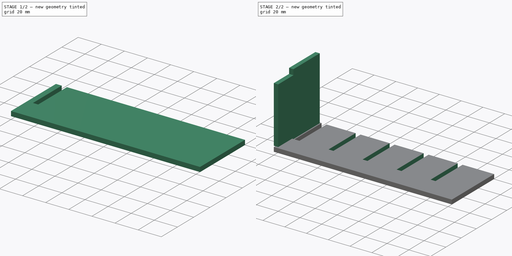
[diagram: build sequence overview — one tinted view per stage of 2, left to right]
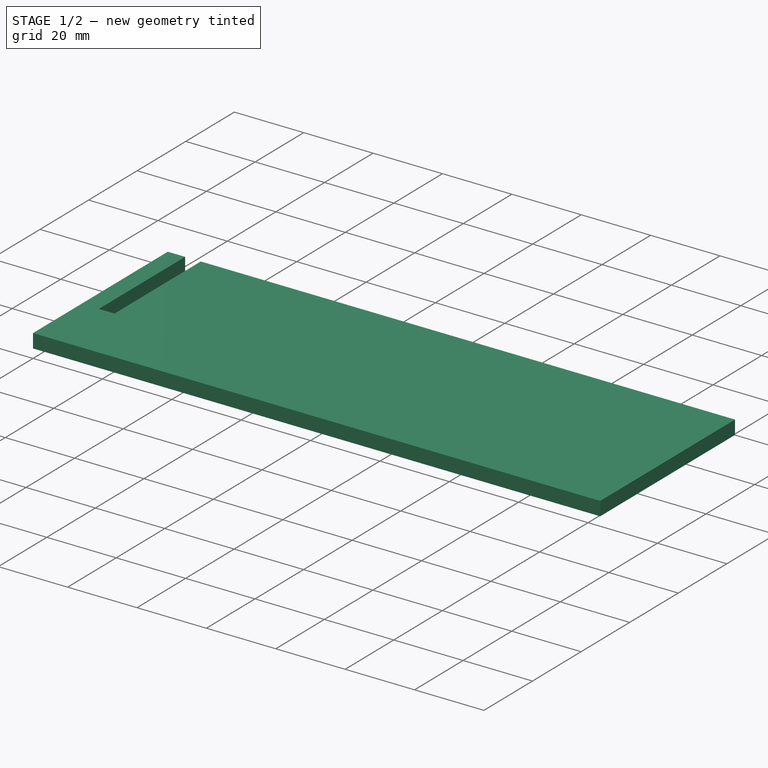
[diagram: stage 1 of 2 — iso view after this stage's code; geometry added in this stage tinted green]
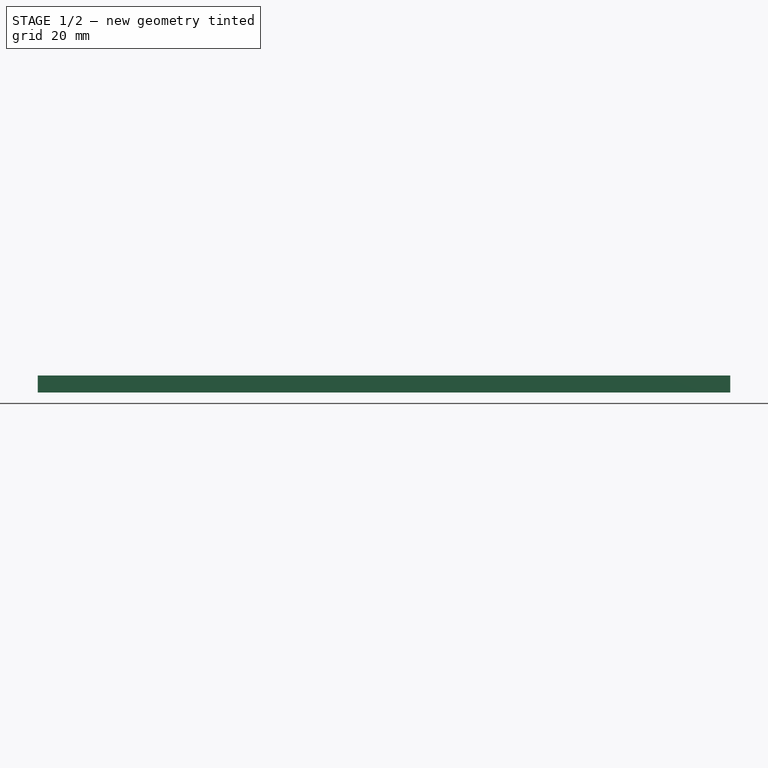
[diagram: stage 1 of 2 — front view after this stage's code; geometry added in this stage tinted green]
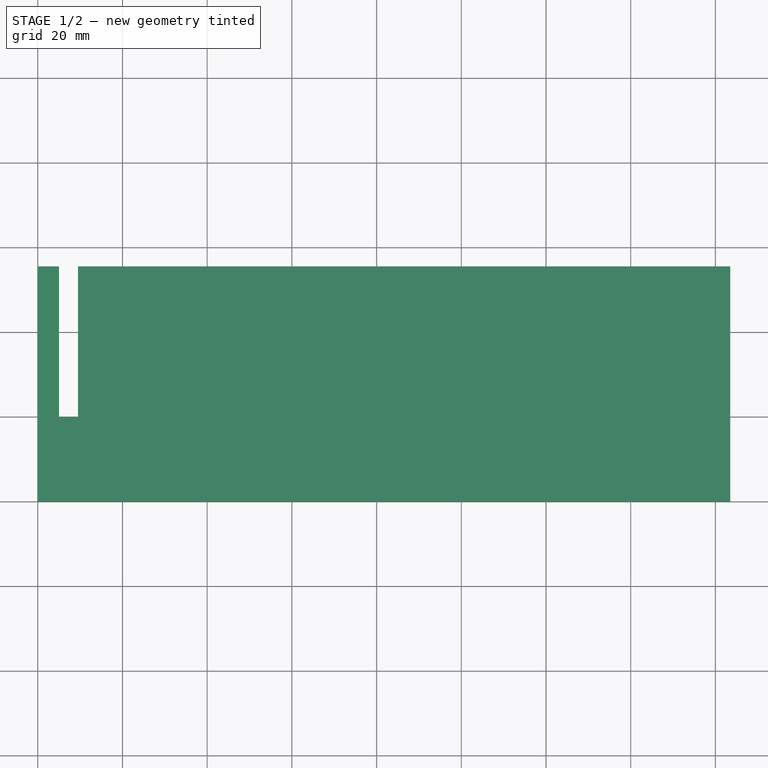
[diagram: stage 1 of 2 — top view after this stage's code; geometry added in this stage tinted green]
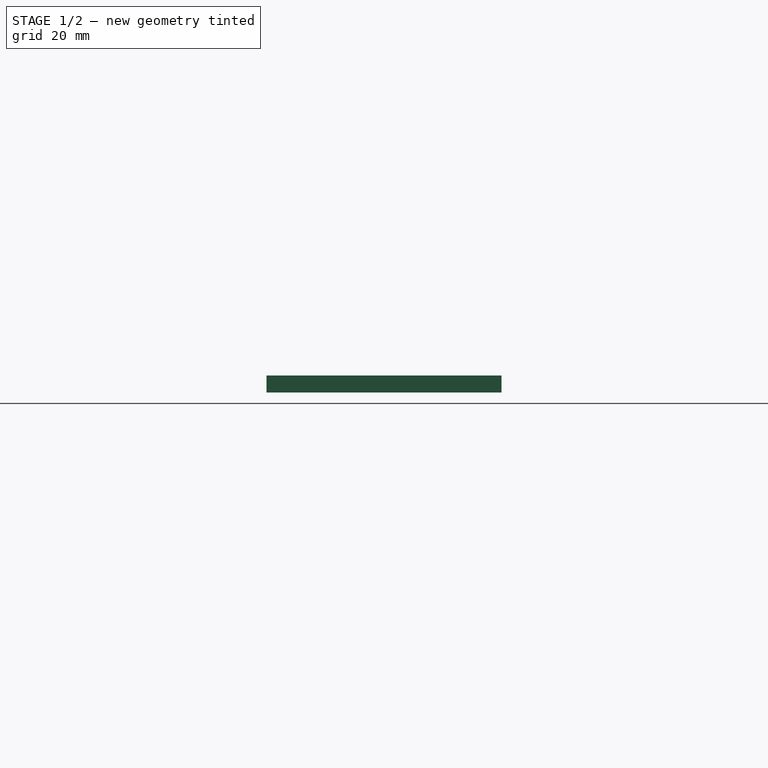
[diagram: stage 1 of 2 — right view after this stage's code; geometry added in this stage tinted green]
FCSTD DOCUMENT  (FreeCAD 0.19R)
Label: Box_Divider
License: All rights reserved
LicenseURL: http://en.wikipedia.org/wiki/All_rights_reserved
objects: Sketcher::SketchObject×4, PartDesign::Body×4, PartDesign::Pad×2, PartDesign::Pocket×1, PartDesign::LinearPattern×1, PartDesign::ShapeBinder×1
note: 16 computed .brp shape members not serialized (recipe doc carries the construction recipe); baked Part::Feature solids carry a one-line shape summary decoded from their .brp

FEATURE [Sketcher::SketchObject] Sketch
  FullyConstrained = true
  MapMode = 5
  Support = -> [XY_Plane]
  sketch-geometry (4):
    g0: LineSegment StartX=0 StartY=0 StartZ=0 EndX=163.5 EndY=0 EndZ=0
    g1: LineSegment StartX=163.5 StartY=0 StartZ=0 EndX=163.5 EndY=55.5 EndZ=0
    g2: LineSegment StartX=163.5 StartY=55.5 StartZ=0 EndX=0 EndY=55.5 EndZ=0
    g3: LineSegment StartX=0 StartY=55.5 StartZ=0 EndX=0 EndY=0 EndZ=0
  constraints (11):
    c: Coincident(g0,g1)
    c: Coincident(g1,g2)
    c: Coincident(g2,g3)
    c: Coincident(g3,g0)
    c: Horizontal(g0)
    c: Horizontal(g2)
    c: Vertical(g1)
    c: Vertical(g3)
    c: Coincident(g0,g-1)
    c: DistanceX(g2,g2) = 163.5
    c: DistanceY(g3,g3) = 55.5
FEATURE [PartDesign::Pad] Pad
  Direction = (0,0,1)
  Length = 4
  Length2 = 100
  Profile = -> Sketch
  Refine = true
  Type = 0
FEATURE [Sketcher::SketchObject] Sketch001
  ExternalGeometry = -> [Pad]
  FullyConstrained = true
  MapMode = 5
  Placement = pos=(0,0,4) rot=(0,0,1;0rad)
  Support = -> [Pad]
  sketch-geometry (4):
    g0: LineSegment StartX=5 StartY=55.5 StartZ=0 EndX=9.5 EndY=55.5 EndZ=0
    g1: LineSegment StartX=9.5 StartY=55.5 StartZ=0 EndX=9.5 EndY=20 EndZ=0
    g2: LineSegment StartX=9.5 StartY=20 StartZ=0 EndX=5 EndY=20 EndZ=0
    g3: LineSegment StartX=5 StartY=20 StartZ=0 EndX=5 EndY=55.5 EndZ=0
  constraints (13):
    c: Coincident(g0,g1)
    c: Coincident(g1,g2)
    c: Coincident(g2,g3)
    c: Coincident(g3,g0)
    c: Horizontal(g0)
    c: Horizontal(g2)
    c: Vertical(g1)
    c: Vertical(g3)
    c: PointOnObject(g0,g-3)
    c: DistanceX(g0,g0) = 4.5
    c: DistanceX(g-3,g0) = 5
    c: DistanceY(g2) = 20
    c: DistanceY(g1,g1) = 35.5  'Slotlength'
FEATURE [PartDesign::Pocket] Pocket
  BaseFeature = -> Pad
  Length = 5
  Length2 = 100
  Profile = -> Sketch001
  Refine = true
  Type = 1
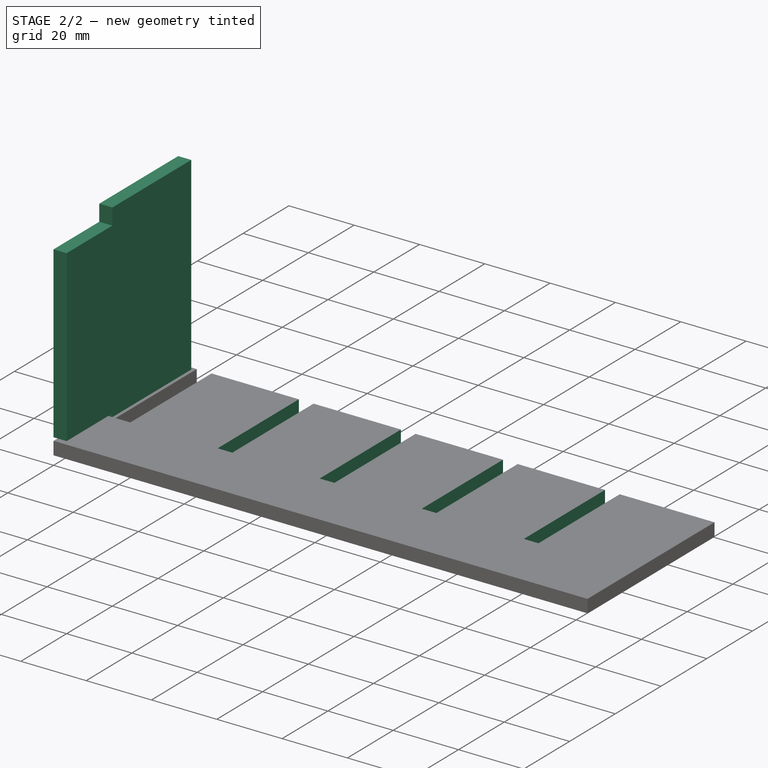
[diagram: stage 2 of 2 — iso view after this stage's code; geometry added in this stage tinted green]
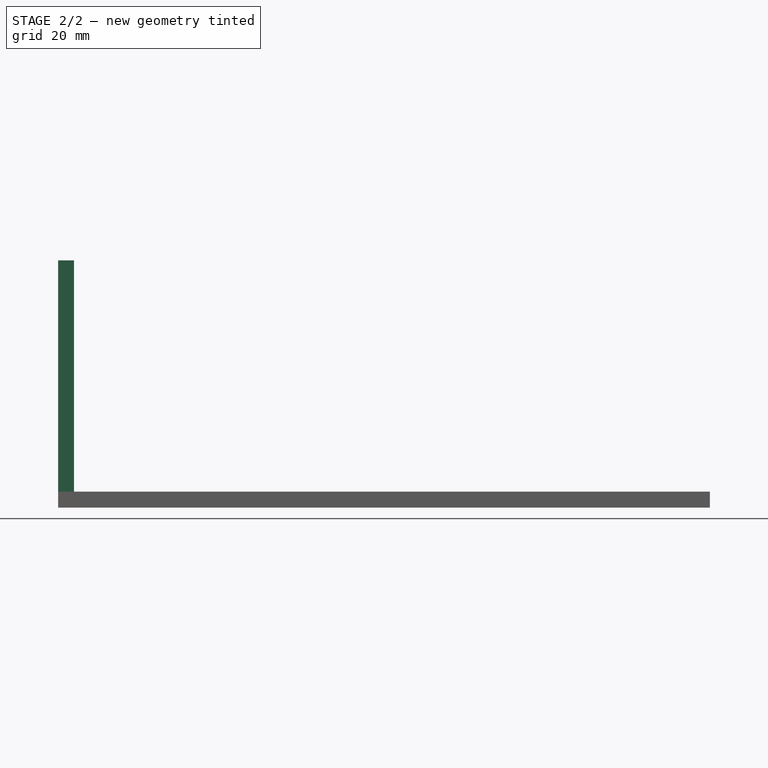
[diagram: stage 2 of 2 — front view after this stage's code; geometry added in this stage tinted green]
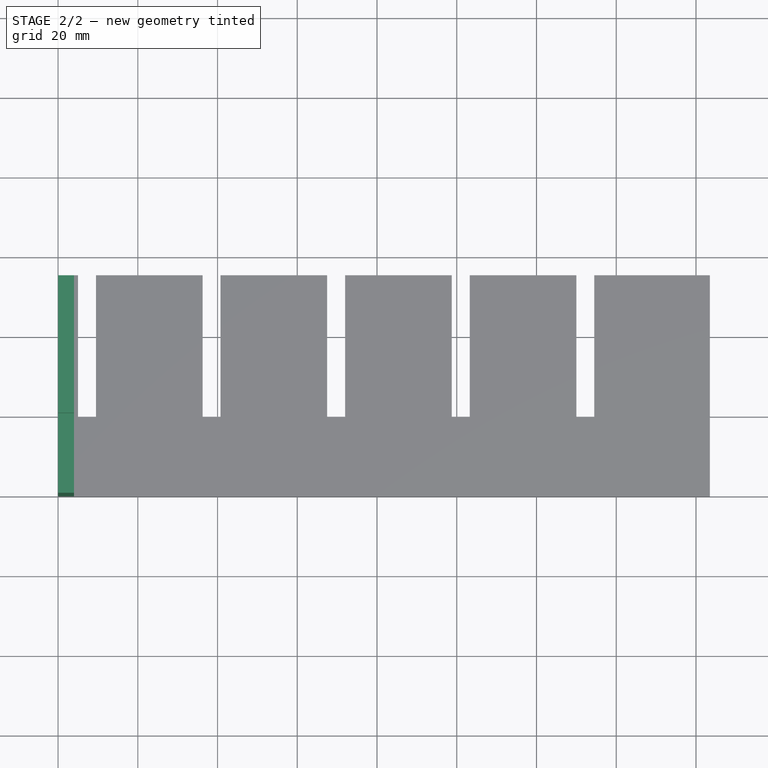
[diagram: stage 2 of 2 — top view after this stage's code; geometry added in this stage tinted green]
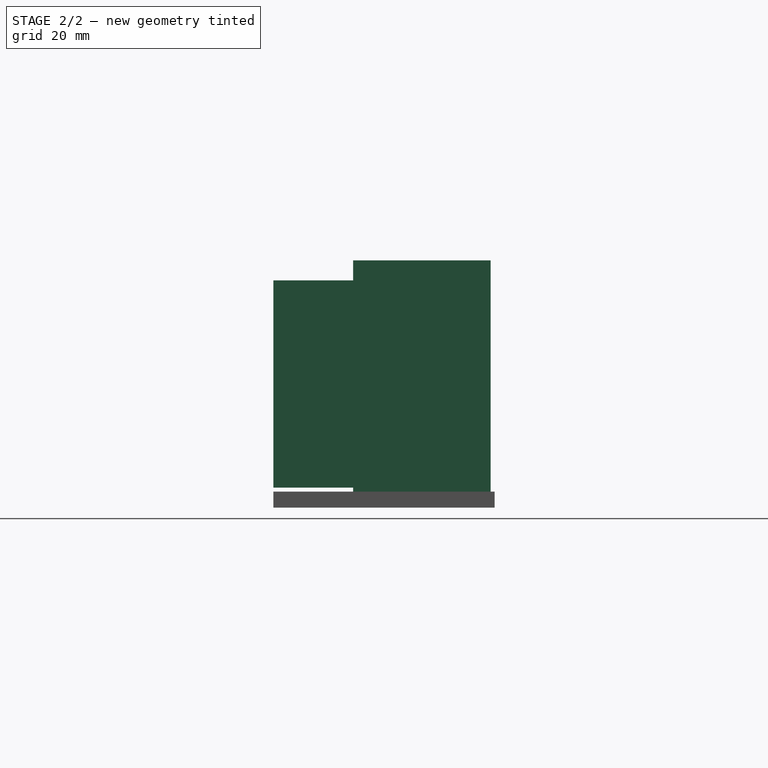
[diagram: stage 2 of 2 — right view after this stage's code; geometry added in this stage tinted green]
FEATURE [PartDesign::LinearPattern] LinearPattern
  BaseFeature = -> Pocket
  Direction = -> Sketch001 [H_Axis]
  Length = 125
  Occurrences = 3
  Originals = -> [Pocket]
  Refine = true
FEATURE [PartDesign::Body] Body  label="Side"
  Group = -> [Sketch,Pad,Sketch001,Pocket,LinearPattern]
  Origin = -> Origin
  Tip = -> LinearPattern
FEATURE [Sketcher::SketchObject] Sketch002
  FullyConstrained = true
  MapMode = 5
  Placement = pos=(0,0,0) rot=(0.57735,0.57735,0.57735;2.0944rad)
  Support = -> [YZ_Plane001]
  expr: Constraints[21] = Sketch001.Constraints.Slotlength - 1mm
  sketch-geometry (8):
    g0: LineSegment StartX=0 StartY=5 StartZ=0 EndX=20 EndY=5 EndZ=0
    g1: LineSegment StartX=20 StartY=5 StartZ=0 EndX=20 EndY=0 EndZ=0
    g2: LineSegment StartX=20 StartY=0 StartZ=0 EndX=54.5 EndY=0 EndZ=0
    g3: LineSegment StartX=54.5 StartY=0 StartZ=0 EndX=54.5 EndY=62 EndZ=0
    g4: LineSegment StartX=54.5 StartY=62 StartZ=0 EndX=20 EndY=62 EndZ=0
    g5: LineSegment StartX=20 StartY=62 StartZ=0 EndX=20 EndY=57 EndZ=0
    g6: LineSegment StartX=20 StartY=57 StartZ=0 EndX=0 EndY=57 EndZ=0
    g7: LineSegment StartX=0 StartY=57 StartZ=0 EndX=0 EndY=5 EndZ=0
  constraints (24):
    c: PointOnObject(g0,g-2)
    c: Coincident(g0,g1)
    c: PointOnObject(g1,g-1)
    c: Vertical(g1)
    c: Coincident(g1,g2)
    c: PointOnObject(g2,g-1)
    c: Coincident(g2,g3)
    c: Vertical(g3)
    c: Coincident(g3,g4)
    c: Horizontal(g4)
    c: Coincident(g4,g5)
    c: Vertical(g5)
    c: Coincident(g5,g6)
    c: PointOnObject(g6,g-2)
    c: Horizontal(g6)
    c: Coincident(g6,g7)
    c: Coincident(g7,g0)
    c: Horizontal(g0)
    c: Equal(g1,g5)
    c: DistanceY(g5,g5) = 5
    c: DistanceY(g3,g3) = 62
    c: DistanceX(g2,g2) = 34.5
    c: DistanceX(g-1,g2) = 54.5
    c: Vertical(g5,g0)
FEATURE [PartDesign::Pad] Pad001
  Direction = (1,-2e-16,3e-16)
  Length = 4
  Length2 = 100
  Placement = pos=(0,0,0) rot=(0.57735,0.57735,0.57735;2.0944rad)
  Profile = -> Sketch002
  Refine = true
  Type = 0
FEATURE [PartDesign::Body] Body001  label="Holder"
  Group = -> [Sketch002,Pad001]
  Origin = -> Origin001
  Placement = pos=(5.5,0,0) rot=(0,0,1;0rad)
  Tip = -> Pad001
FEATURE [PartDesign::ShapeBinder] ShapeBinder
  Support = -> [LinearPattern]
  TraceSupport = false
FEATURE [PartDesign::Body] Body002
  Group = -> [ShapeBinder]
  Origin = -> Origin002
FEATURE [PartDesign::Body] Body003
  Origin = -> Origin003
  Placement = pos=(0,0,0) rot=(0,1,0;1.5708rad)
FEATURE [Sketcher::SketchObject] Sketch003
  FullyConstrained = false
  Placement = pos=(0,0,0) rot=(0,0,1;1.5708rad)
  sketch-geometry (8):
    g0: LineSegment StartX=5 StartY=6e-16 StartZ=0 EndX=5 EndY=20 EndZ=0
    g1: LineSegment StartX=57 StartY=6.3e-15 StartZ=0 EndX=5 EndY=6e-16 EndZ=0
    g2: LineSegment StartX=57 StartY=20 StartZ=0 EndX=57 EndY=3.6e-15 EndZ=0
    g3: LineSegment StartX=62 StartY=20 StartZ=0 EndX=57 EndY=20 EndZ=0
    g4: LineSegment StartX=62 StartY=54.5 StartZ=0 EndX=62 EndY=20 EndZ=0
    g5: LineSegment StartX=-6.1e-15 StartY=54.5 StartZ=0 EndX=62 EndY=54.5 EndZ=0
    g6: LineSegment StartX=-2.2e-15 StartY=20 StartZ=0 EndX=-6.1e-15 EndY=54.5 EndZ=0
    g7: LineSegment StartX=5 StartY=20 StartZ=0 EndX=-3.6e-15 EndY=20 EndZ=0
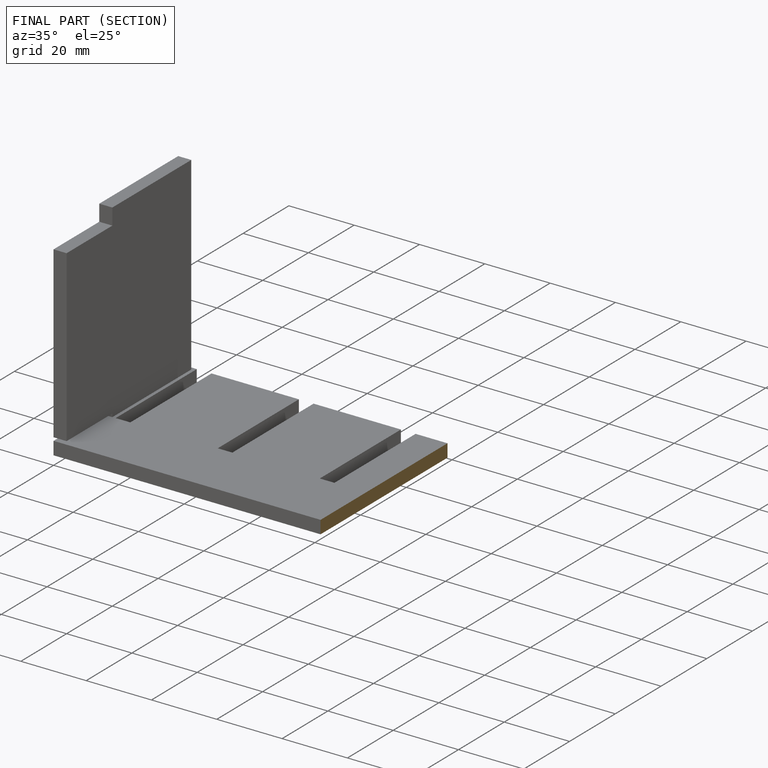
[diagram: finished part — half-section view (interior)]
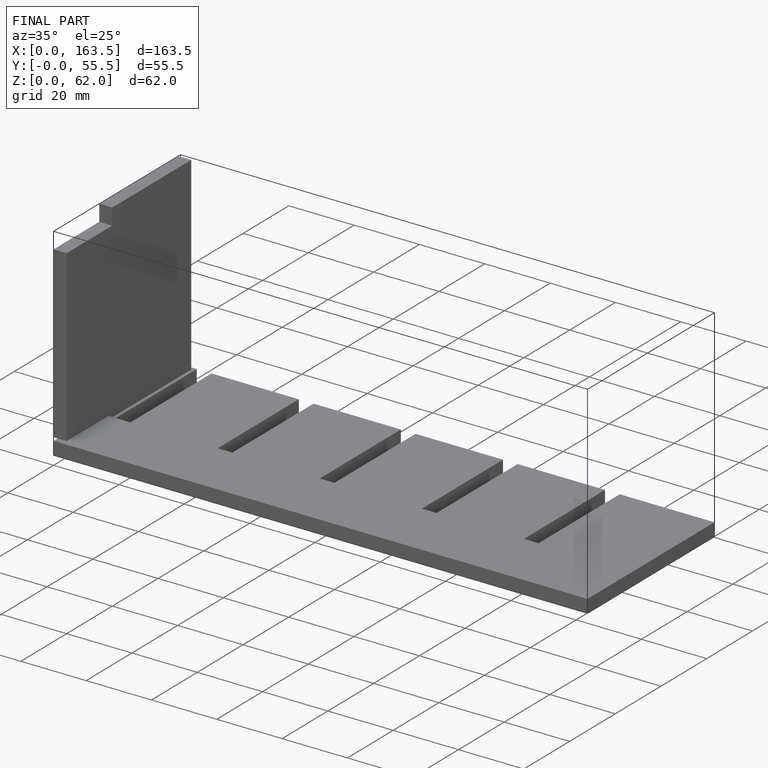
[diagram: finished part — iso view with bounding-box wireframe]
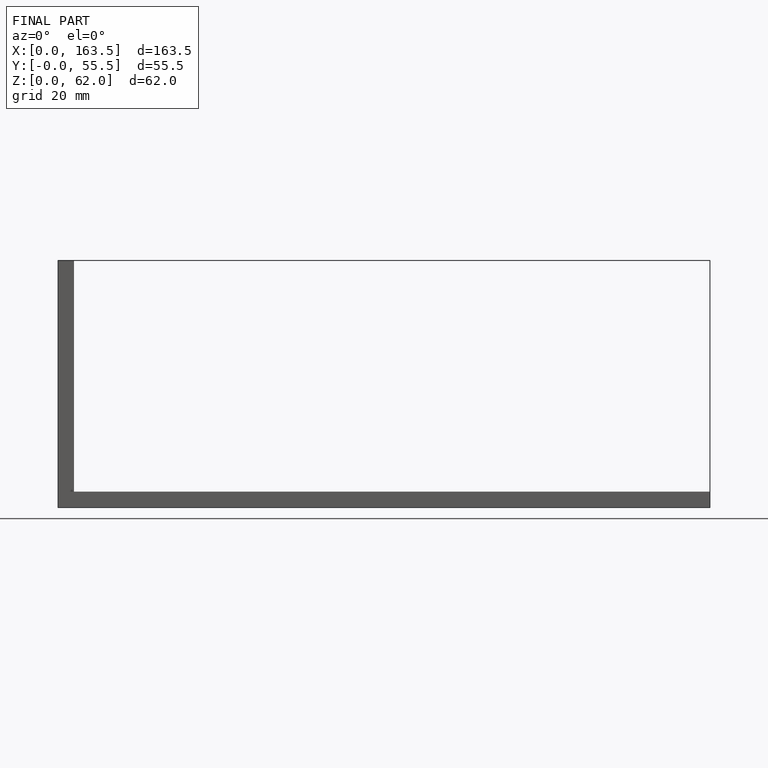
[diagram: finished part — front view with bounding-box wireframe]
